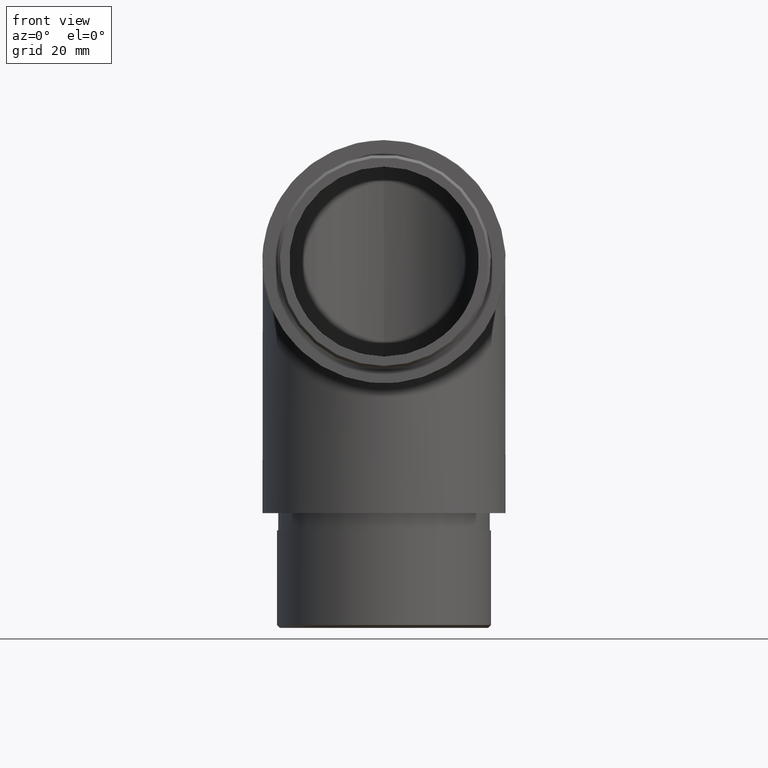
[diagram: clean part render]
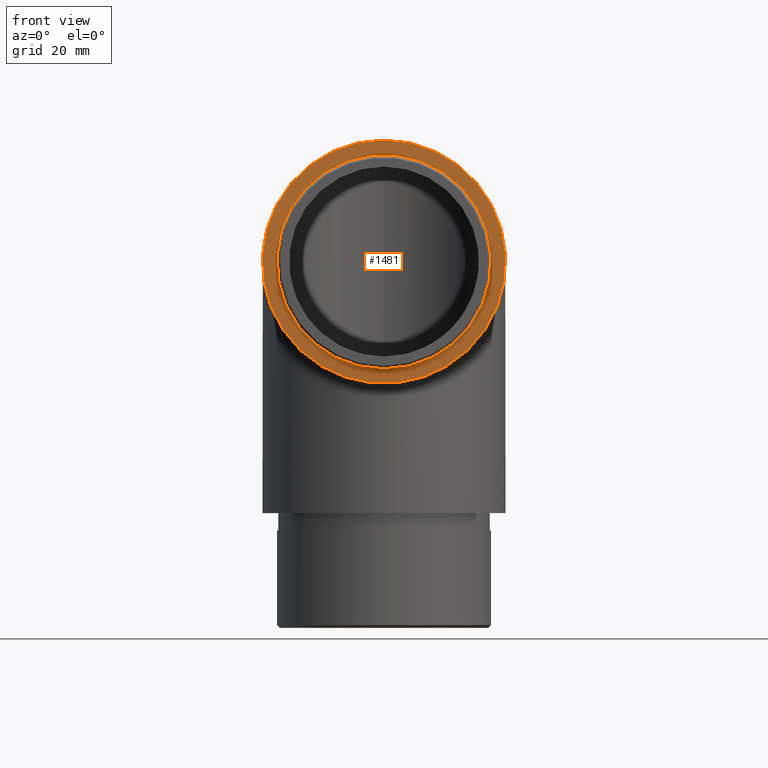
[diagram: same view with one face highlighted and labeled with its STEP entity id]
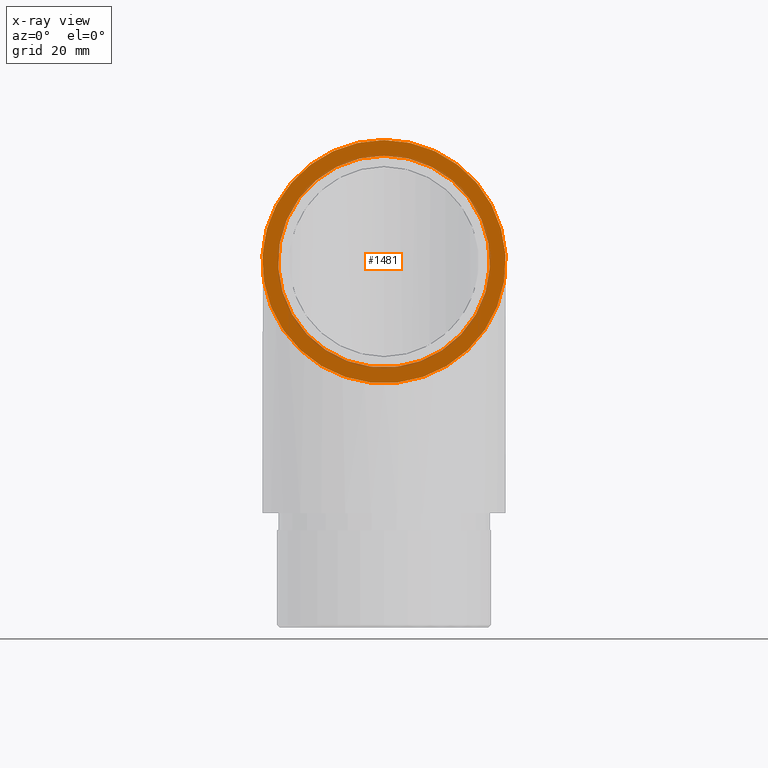
[diagram: x-ray of the same camera — body ghosted, the highlighted face saturated]
A machine part, front view. The second image highlights one B-rep face of the part: STEP entity #1481.
The next image is the same camera in x-ray: the body ghosted, the highlighted face saturated — about 7% of this face is hidden behind the body in this view.
In plain terms, the highlighted planar face has unit normal (0, 1, 0).
Its self-contained STEP definition (entity closure, byte-faithful):
#900 = CIRCLE ( 'NONE', #4754, 18.44999999999999900 ) ;
#1481 = ADVANCED_FACE ( 'NONE', ( #7487, #2671 ), #2606, .F. ) ;
#2405 = VERTEX_POINT ( 'NONE', #10483 ) ;
#2606 = PLANE ( 'NONE',  #5546 ) ;
#2649 = CARTESIAN_POINT ( 'NONE',  ( 0.0000000000000000000, 0.0000000000000000000, 0.0000000000000000000 ) ) ;
#2655 = EDGE_LOOP ( 'NONE', ( #2656 ) ) ;
#2656 = ORIENTED_EDGE ( 'NONE', *, *, #12136, .F. ) ;
#2671 = FACE_BOUND ( 'NONE', #11904, .T. ) ;
#3288 = AXIS2_PLACEMENT_3D ( 'NONE', #4491, #7429, #11451 ) ;
#3547 = CARTESIAN_POINT ( 'NONE',  ( 0.0000000000000000000, 0.0000000000000000000, 18.44999999999999900 ) ) ;
#3898 = DIRECTION ( 'NONE',  ( -0.0000000000000000000, -1.000000000000000000, -0.0000000000000000000 ) ) ;
#4443 = CIRCLE ( 'NONE', #3288, 21.19999999999999900 ) ;
#4481 = DIRECTION ( 'NONE',  ( 0.0000000000000000000, -0.0000000000000000000, 1.000000000000000000 ) ) ;
#4491 = CARTESIAN_POINT ( 'NONE',  ( 0.0000000000000000000, 0.0000000000000000000, 0.0000000000000000000 ) ) ;
#4754 = AXIS2_PLACEMENT_3D ( 'NONE', #11175, #3898, #8199 ) ;
#5546 = AXIS2_PLACEMENT_3D ( 'NONE', #2649, #12517, #4481 ) ;
#5612 = ORIENTED_EDGE ( 'NONE', *, *, #10907, .F. ) ;
#7429 = DIRECTION ( 'NONE',  ( 0.0000000000000000000, 1.000000000000000000, 0.0000000000000000000 ) ) ;
#7487 = FACE_OUTER_BOUND ( 'NONE', #2655, .T. ) ;
#8199 = DIRECTION ( 'NONE',  ( 0.0000000000000000000, 0.0000000000000000000, 1.000000000000000000 ) ) ;
#10483 = CARTESIAN_POINT ( 'NONE',  ( 0.0000000000000000000, 0.0000000000000000000, 21.19999999999999900 ) ) ;
#10907 = EDGE_CURVE ( 'NONE', #12662, #12662, #900, .T. ) ;
#11175 = CARTESIAN_POINT ( 'NONE',  ( 0.0000000000000000000, 0.0000000000000000000, 0.0000000000000000000 ) ) ;
#11451 = DIRECTION ( 'NONE',  ( 0.0000000000000000000, 0.0000000000000000000, 1.000000000000000000 ) ) ;
#11904 = EDGE_LOOP ( 'NONE', ( #5612 ) ) ;
#12136 = EDGE_CURVE ( 'NONE', #2405, #2405, #4443, .T. ) ;
#12517 = DIRECTION ( 'NONE',  ( 0.0000000000000000000, 1.000000000000000000, 0.0000000000000000000 ) ) ;
#12662 = VERTEX_POINT ( 'NONE', #3547 ) ;